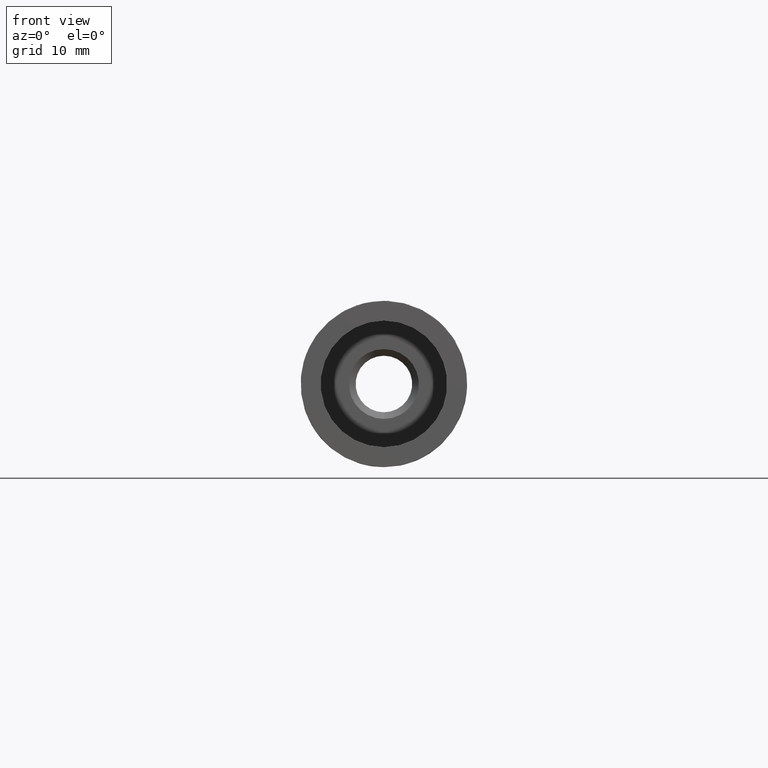
[diagram: clean part render]
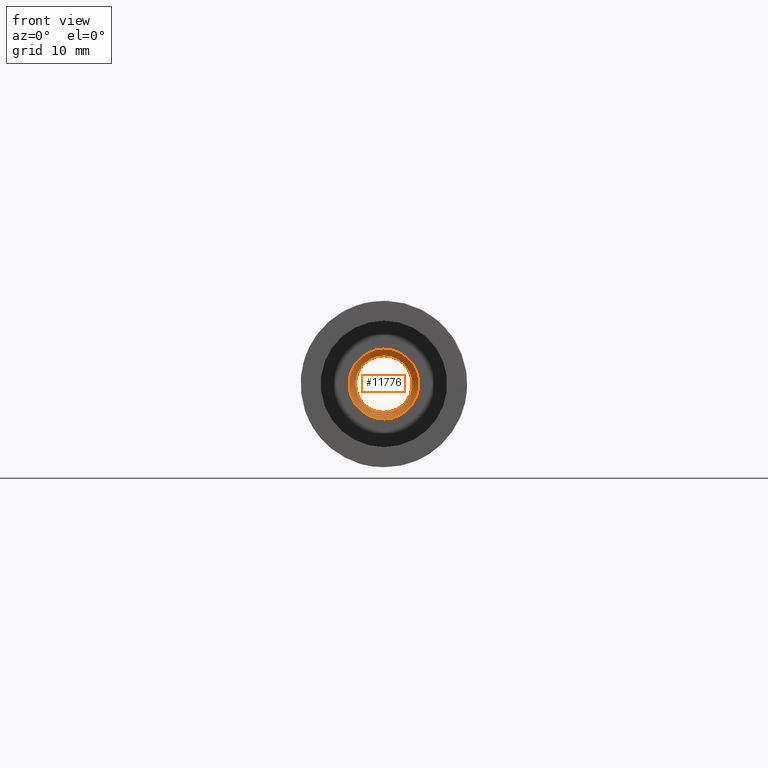
[diagram: same view with one face highlighted and labeled with its STEP entity id]
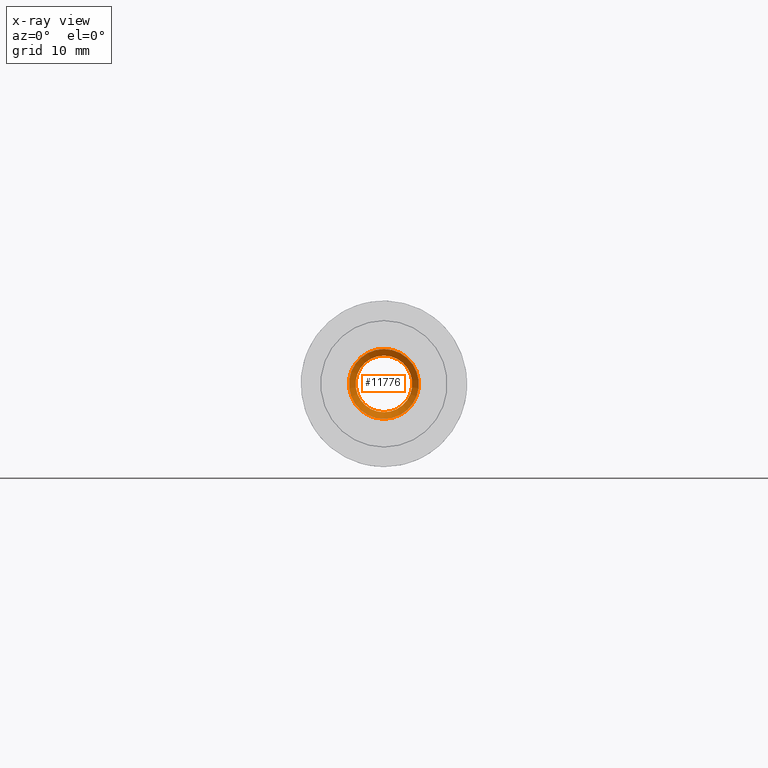
[diagram: x-ray of the same camera — body ghosted, the highlighted face saturated]
A machine part, front view. The second image highlights one B-rep face of the part: STEP entity #11776.
The next image is the same camera in x-ray: the body ghosted, the highlighted face saturated — about 0% of this face is hidden behind the body in this view.
In plain terms, the highlighted conical surface has half-angle 45 deg.
Its self-contained STEP definition (entity closure, byte-faithful):
#93 = VERTEX_POINT ( 'NONE', #9466 ) ;
#404 = EDGE_CURVE ( 'NONE', #93, #93, #1373, .T. ) ;
#668 = EDGE_CURVE ( 'NONE', #7085, #7085, #2267, .T. ) ;
#1026 = CARTESIAN_POINT ( 'NONE',  ( 0.000000000000000000, 81.00000000000001421, 0.000000000000000000 ) ) ;
#1063 = ORIENTED_EDGE ( 'NONE', *, *, #668, .F. ) ;
#1373 = CIRCLE ( 'NONE', #5067, 5.249999999999991118 ) ;
#2046 = EDGE_LOOP ( 'NONE', ( #1063 ) ) ;
#2267 = CIRCLE ( 'NONE', #10594, 4.249999999999984013 ) ;
#2551 = CONICAL_SURFACE ( 'NONE', #13228, 4.249999999999984013, 0.7853981633974445042 ) ;
#4170 = DIRECTION ( 'NONE',  ( 0.000000000000000000, 0.000000000000000000, -1.000000000000000000 ) ) ;
#4486 = DIRECTION ( 'NONE',  ( 0.000000000000000000, -1.000000000000000000, 0.000000000000000000 ) ) ;
#4953 = FACE_OUTER_BOUND ( 'NONE', #13515, .T. ) ;
#5067 = AXIS2_PLACEMENT_3D ( 'NONE', #11009, #12179, #13380 ) ;
#7085 = VERTEX_POINT ( 'NONE', #11931 ) ;
#7184 = ORIENTED_EDGE ( 'NONE', *, *, #404, .F. ) ;
#9466 = CARTESIAN_POINT ( 'NONE',  ( 0.000000000000000000, 80.00000000000000000, -5.249999999999991118 ) ) ;
#10056 = DIRECTION ( 'NONE',  ( 0.000000000000000000, -1.000000000000000000, 0.000000000000000000 ) ) ;
#10594 = AXIS2_PLACEMENT_3D ( 'NONE', #1026, #4486, #15190 ) ;
#11009 = CARTESIAN_POINT ( 'NONE',  ( 0.000000000000000000, 80.00000000000000000, 0.000000000000000000 ) ) ;
#11192 = CARTESIAN_POINT ( 'NONE',  ( 0.000000000000000000, 81.00000000000001421, 0.000000000000000000 ) ) ;
#11776 = ADVANCED_FACE ( 'NONE', ( #4953, #12331 ), #2551, .F. ) ;
#11931 = CARTESIAN_POINT ( 'NONE',  ( 0.000000000000000000, 81.00000000000001421, -4.249999999999984013 ) ) ;
#12179 = DIRECTION ( 'NONE',  ( -0.000000000000000000, 1.000000000000000000, -0.000000000000000000 ) ) ;
#12331 = FACE_BOUND ( 'NONE', #2046, .T. ) ;
#13228 = AXIS2_PLACEMENT_3D ( 'NONE', #11192, #10056, #4170 ) ;
#13380 = DIRECTION ( 'NONE',  ( 0.000000000000000000, 0.000000000000000000, -1.000000000000000000 ) ) ;
#13515 = EDGE_LOOP ( 'NONE', ( #7184 ) ) ;
#15190 = DIRECTION ( 'NONE',  ( 0.000000000000000000, 0.000000000000000000, -1.000000000000000000 ) ) ;